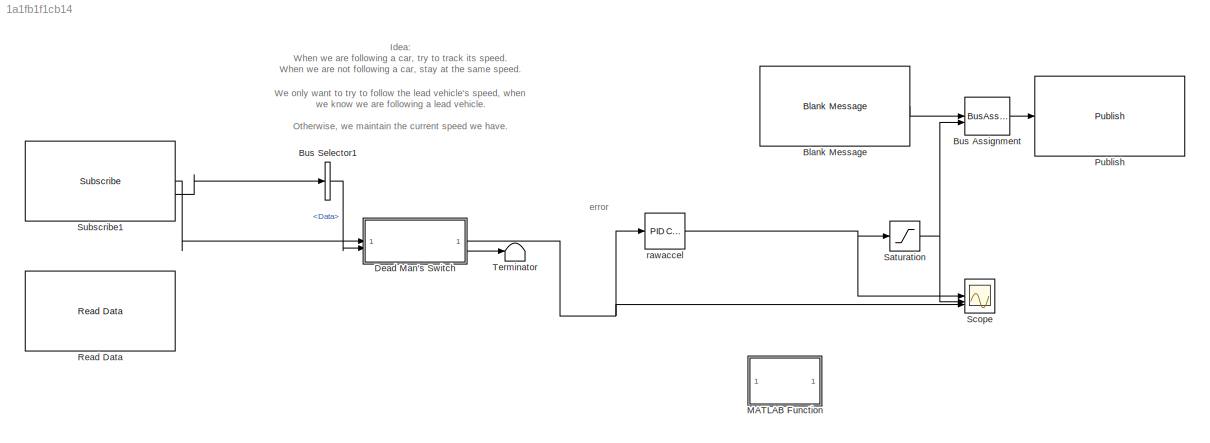
MODEL slx_1a1fb1f1cb14
KIND model
CONFIG AbsTol = auto
CONFIG EnableMultiTasking = off
CONFIG FixedStep = 0.05
CONFIG MaxStep = auto
CONFIG MinStep = auto
CONFIG RelTol = 1e-3
CONFIG SampleTimeConstraint = Unconstrained
CONFIG SolverName = FixedStepAuto
CONFIG StartTime = 0.0
CONFIG StopTime = inf
WORKSPACE source: mxarray member
WORKSPACE Logfile_Data_Object: robotics.ros.BagSelection (value not decoded)
WORKSPACE Logfile_Path = '<userpath>/work/teaching/cs3891-2023F/src/docker/mytest.bag'
WORKSPACE Logfile_Playback_Duration = 200
WORKSPACE Logfile_Playback_Offset = 100
BLOCK [Reference] Blank Message  REF=robotlib/Blank Message
  LibrarySourceBlock = roslib/ROS/Blank Message
  SourceBlock = robotlib/Blank Message
  SourceType = ROS Blank Message
BLOCK [BusAssignment] Bus Assignment
  AssignedSignals = Data
BLOCK [BusSelector] Bus Selector1
  OutputSignals = Data
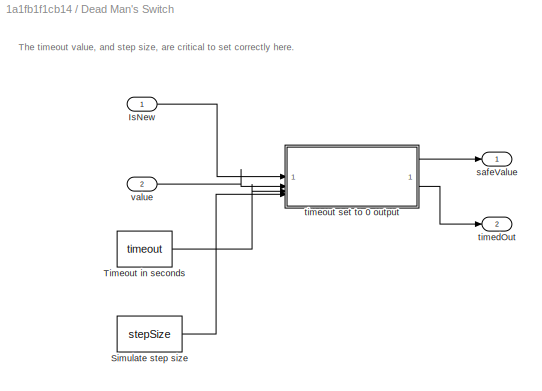
BLOCK [SubSystem] Dead Man's Switch
  TreatAsAtomicUnit = on
BLOCK [Inport] Dead Man's Switch/IsNew
BLOCK [Constant] Dead Man's Switch/Simulate step size
  Value = stepSize
BLOCK [Constant] Dead Man's Switch/Timeout in seconds
  Value = timeout
BLOCK [Outport] Dead Man's Switch/safeValue
  InitialOutput = [0]
BLOCK [Outport] Dead Man's Switch/timedOut
  InitialOutput = [0]
  Port = 2
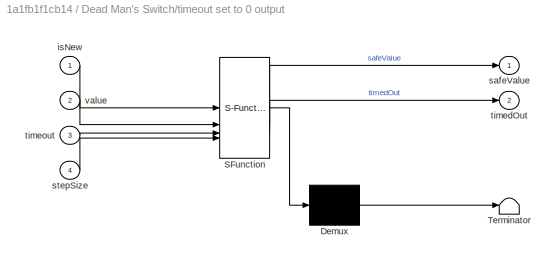
BLOCK [SubSystem] Dead Man's Switch/timeout set to 0 output
  ErrorFcn = Stateflow.Translate.translate
  PermitHierarchicalResolution = ExplicitOnly
  SFBlockType = MATLAB Function
  TreatAsAtomicUnit = on
BLOCK [Demux] Dead Man's Switch/timeout set to 0 output/ Demux 
  Outputs = 1
BLOCK [S-Function] Dead Man's Switch/timeout set to 0 output/ SFunction 
  EnableBusSupport = on
  FunctionName = sf_sfun
  PortCounts = [4 3]
  SFcnIsStateOwnerBlock = off
  SFunctionDeploymentMode = off
  Tag = Stateflow S-Function 2
BLOCK [Terminator] Dead Man's Switch/timeout set to 0 output/ Terminator 
BLOCK [Inport] Dead Man's Switch/timeout set to 0 output/isNew
BLOCK [Outport] Dead Man's Switch/timeout set to 0 output/safeValue
BLOCK [Inport] Dead Man's Switch/timeout set to 0 output/stepSize
  Port = 4
BLOCK [Outport] Dead Man's Switch/timeout set to 0 output/timedOut
  Port = 2
BLOCK [Inport] Dead Man's Switch/timeout set to 0 output/timeout
  Port = 3
BLOCK [Inport] Dead Man's Switch/timeout set to 0 output/value
  Port = 2
BLOCK [Inport] Dead Man's Switch/value
  Port = 2
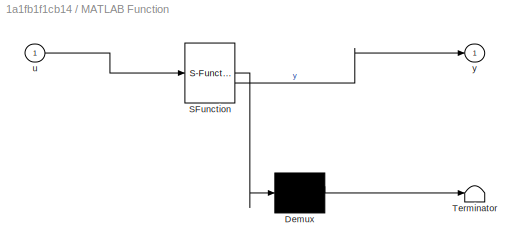
BLOCK [SubSystem] MATLAB Function
  Commented = on
  ErrorFcn = Stateflow.Translate.translate
  LibrarySourceBlock = simulink/User-Defined\nFunctions/MATLAB Function
  PermitHierarchicalResolution = ExplicitOnly
  SFBlockType = MATLAB Function
  TreatAsAtomicUnit = on
BLOCK [Demux] MATLAB Function/ Demux 
  Outputs = 1
BLOCK [S-Function] MATLAB Function/ SFunction 
  EnableBusSupport = on
  FunctionName = sf_sfun
  PortCounts = [1 2]
  SFcnIsStateOwnerBlock = off
  SFunctionDeploymentMode = off
  Tag = Stateflow S-Function 1
BLOCK [Terminator] MATLAB Function/ Terminator 
BLOCK [Inport] MATLAB Function/u
BLOCK [Outport] MATLAB Function/y
BLOCK [Reference] Publish  REF=robotlib/Publish
  LibrarySourceBlock = roslib/ROS/Publish
  SourceBlock = robotlib/Publish
  SourceType = ROS Publish
BLOCK [Reference] Read Data  REF=robotlib/Read Data
  Commented = on
  LibrarySourceBlock = roslib/ROS/Read Data
  SourceBlock = robotlib/Read Data
  SourceType = Read Data from ROS Bag
BLOCK [Saturate] Saturation
  LowerLimit = -3
  UpperLimit = 1.5
BLOCK [Scope] Scope
  Floating = off
  NumInputPorts = 3
  ScopeSpecificationString = Simulink.scopes.TimeScopeBlockCfg('CurrentConfiguration', extmgr.ConfigurationSet(extmgr.Configuration('Core','General UI',true),extmgr.Configuration('Core','Source UI',true),extmgr.Configuration('Sources','WiredSimulink',true),extmgr.Configuration('Visuals','Time Domain',true,'SerializedDisplays',{struct('MinYLimReal','-6.2832','MaxYLimReal','2.2848','YLabelReal','','MinYLimMag','0.00000','MaxYLi...<+1430ch>
BLOCK [Reference] Subscribe1  REF=robotlib/Subscribe
  LibrarySourceBlock = roslib/ROS/Subscribe
  SourceBlock = robotlib/Subscribe
  SourceType = ROS Subscribe
BLOCK [Terminator] Terminator
BLOCK [Reference] rawaccel  REF=slpidlib/PID Controller
  LibrarySourceBlock = simulink/Continuous/PID Controller
  SourceBlock = slpidlib/PID Controller
  SourceType = PID 1dof
ANNOTATION (root): Idea: When we are following a car, try to track its speed. When we are not following a car, stay at the same speed.
ANNOTATION (root): We only want to try to follow the lead vehicle's speed, when we know we are following a lead vehicle. Otherwise, we maintain the current speed we have.
ANNOTATION (root): error
ANNOTATION Dead Man's Switch: The timeout value, and step size, are critical to set correctly here.
LINE Blank Message:1 -> Bus Assignment:1
LINE Bus Assignment:1 -> Publish:1
LINE Bus Selector1:1 -> Dead Man's Switch:2
LINE Dead Man's Switch/IsNew:1 -> Dead Man's Switch/timeout set to 0 output:1
LINE Dead Man's Switch/Simulate step size:1 -> Dead Man's Switch/timeout set to 0 output:4
LINE Dead Man's Switch/Timeout in seconds:1 -> Dead Man's Switch/timeout set to 0 output:3
LINE Dead Man's Switch/timeout set to 0 output:1 -> Dead Man's Switch/safeValue:1
LINE Dead Man's Switch/timeout set to 0 output:2 -> Dead Man's Switch/timedOut:1
LINE Dead Man's Switch/value:1 -> Dead Man's Switch/timeout set to 0 output:2
NET Dead Man's Switch:1 -> Scope:3, rawaccel:1
LINE Dead Man's Switch:2 -> Terminator:1
NET Saturation:1 -> Bus Assignment:2, Scope:2
LINE Subscribe1:1 -> Dead Man's Switch:1
LINE Subscribe1:2 -> Bus Selector1:1
NET rawaccel:1 -> Saturation:1, Scope:1
note: NET lines group one-source signal fan-out (src -> all destinations, sorted); 1:1 wires keep LINE
CHART MATLAB Function states=1 transitions=1
  STATE_LABEL 'eML_blk_kernel()'
  STATE_LABEL 'SCRIPT:\nfunction y = fcn(u)\n\ny = 0.2*u;\n\n'
CHART Dead Man's Switch/timeout set to 0 output states=1 transitions=1
  STATE_LABEL 'eML_blk_kernel()'
  STATE_LABEL 'SCRIPT:\nfunction [safeValue,timedOut] = fcn(isNew,value,timeout,stepSize)\n%#codegen\npersistent sinceLastMsg\ntimedOut=true;\nif isempty(sinceLastMsg)\n    sinceLastMsg=(timeout/stepSize)+1;\nend\n\nsafeValue=0;\n% if no new message\n% after timeout, we output 0\nif( isNew == true )\n    sinceLastMsg = 0;\nelse\n    sinceLastMsg = sinceLastMsg+1;\nend\n\n% Note: we require step size as an input here, and depend o...<+195ch>'
CHART  states=0 transitions=0
CHART  states=0 transitions=0
